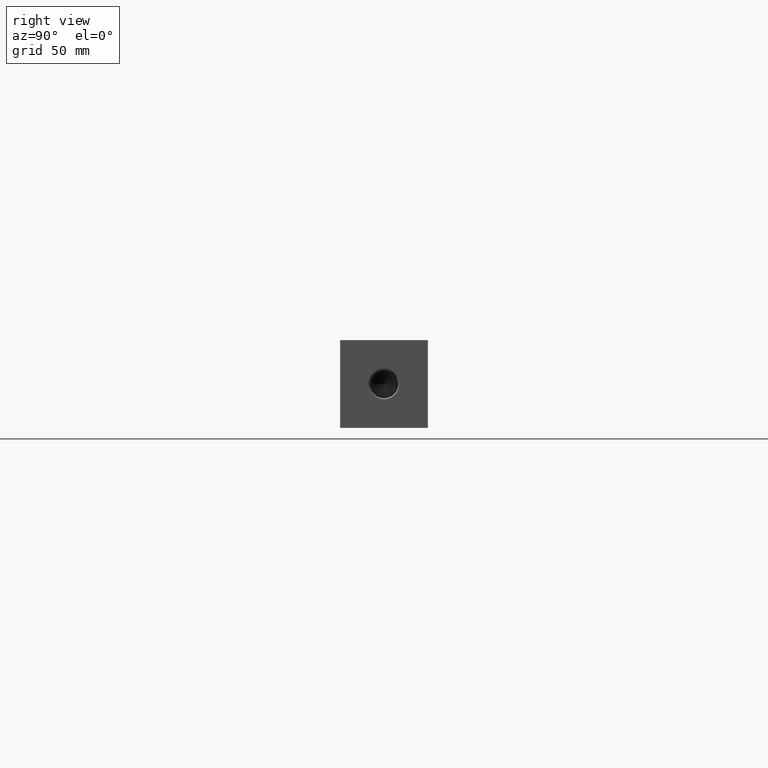
[diagram: clean part render]
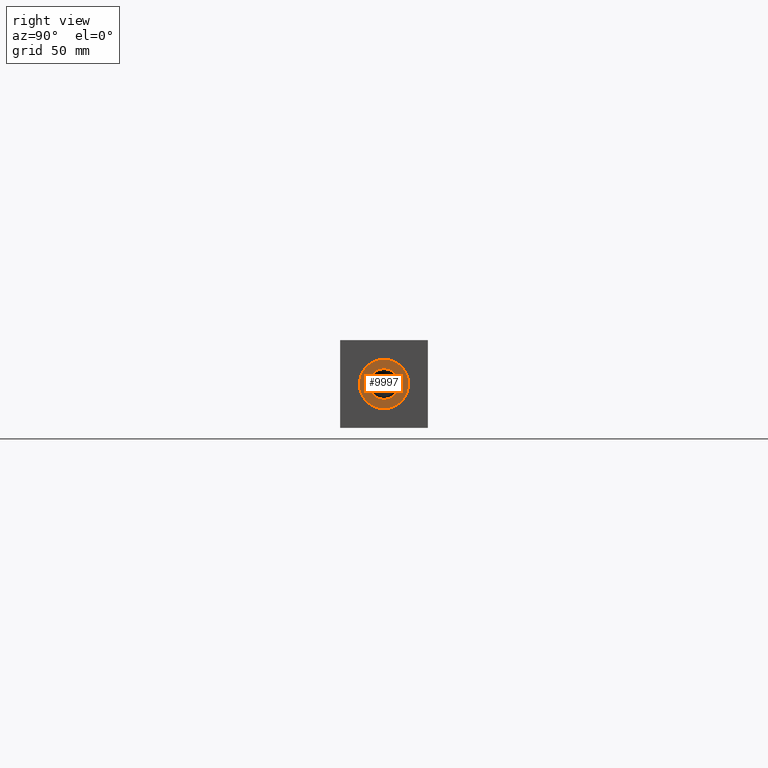
[diagram: same view with one face highlighted and labeled with its STEP entity id]
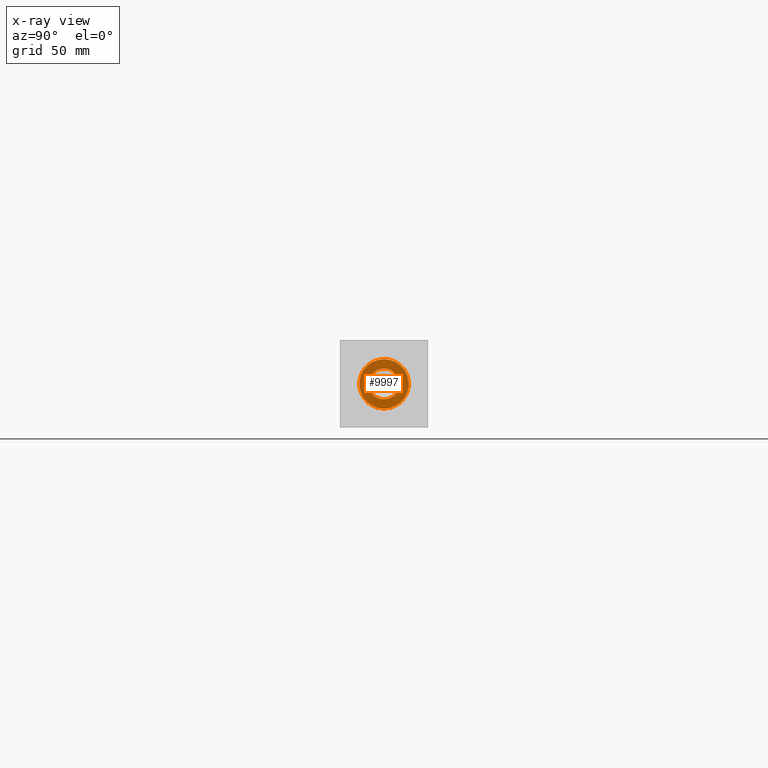
[diagram: x-ray of the same camera — body ghosted, the highlighted face saturated]
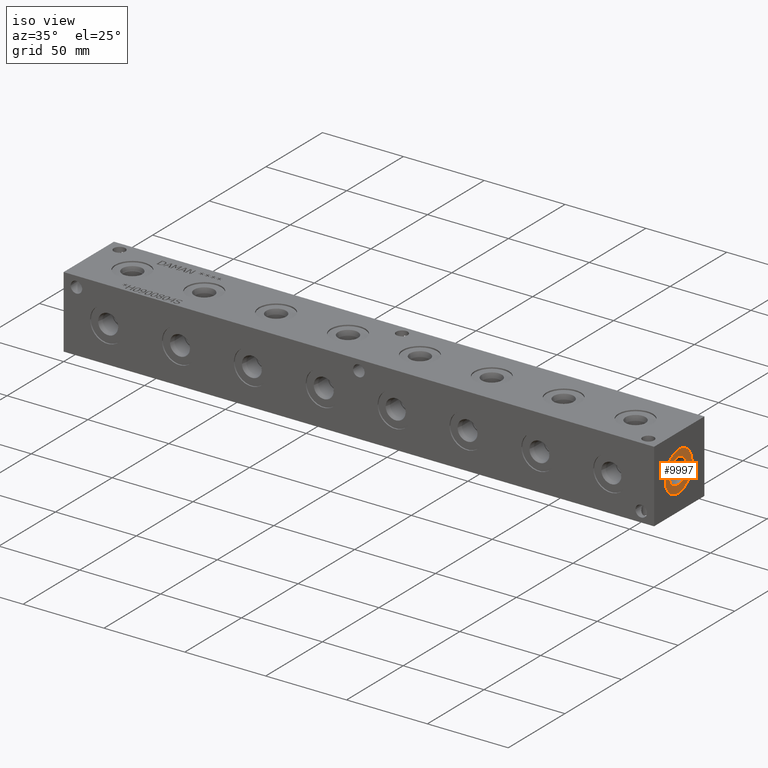
[diagram: same view with one face highlighted and labeled with its STEP entity id]
A machine part, right view. The second image highlights one B-rep face of the part: STEP entity #9997.
The next image is the same camera in x-ray: the body ghosted, the highlighted face saturated — about 0% of this face is hidden behind the body in this view.
A second angle (iso view) of the same face is appended — the face is thin or edge-on in the first view.
In plain terms, the highlighted planar face has unit normal (-1, 0, 0).
Its self-contained STEP definition (entity closure, byte-faithful):
#526=CIRCLE('',#10770,12.5095);
#527=CIRCLE('',#10771,12.5095);
#528=CIRCLE('',#10773,7.7978);
#529=CIRCLE('',#10774,7.7978);
#628=FACE_BOUND('',#2009,.T.);
#888=PLANE('',#10772);
#1405=FACE_OUTER_BOUND('',#2008,.T.);
#2008=EDGE_LOOP('',(#8941,#8942));
#2009=EDGE_LOOP('',(#8943,#8944));
#4820=VERTEX_POINT('',#17422);
#4821=VERTEX_POINT('',#17424);
#4822=VERTEX_POINT('',#17428);
#4823=VERTEX_POINT('',#17429);
#6212=EDGE_CURVE('',#4820,#4821,#526,.T.);
#6213=EDGE_CURVE('',#4821,#4820,#527,.T.);
#6214=EDGE_CURVE('',#4822,#4823,#528,.T.);
#6215=EDGE_CURVE('',#4823,#4822,#529,.T.);
#8941=ORIENTED_EDGE('',*,*,#6213,.F.);
#8942=ORIENTED_EDGE('',*,*,#6212,.F.);
#8943=ORIENTED_EDGE('',*,*,#6214,.T.);
#8944=ORIENTED_EDGE('',*,*,#6215,.T.);
#9997=ADVANCED_FACE('',(#1405,#628),#888,.F.);
#10770=AXIS2_PLACEMENT_3D('',#17425,#13096,#13097);
#10771=AXIS2_PLACEMENT_3D('',#17426,#13098,#13099);
#10772=AXIS2_PLACEMENT_3D('',#17427,#13100,#13101);
#10773=AXIS2_PLACEMENT_3D('',#17430,#13102,#13103);
#10774=AXIS2_PLACEMENT_3D('',#17431,#13104,#13105);
#13096=DIRECTION('center_axis',(-1.,0.,0.));
#13097=DIRECTION('ref_axis',(0.,0.,1.));
#13098=DIRECTION('center_axis',(-1.,0.,0.));
#13099=DIRECTION('ref_axis',(0.,0.,1.));
#13100=DIRECTION('center_axis',(-1.,0.,0.));
#13101=DIRECTION('ref_axis',(0.,0.,1.));
#13102=DIRECTION('center_axis',(-1.,0.,0.));
#13103=DIRECTION('ref_axis',(0.,0.,1.));
#13104=DIRECTION('center_axis',(-1.,0.,0.));
#13105=DIRECTION('ref_axis',(0.,0.,1.));
#17422=CARTESIAN_POINT('',(364.3376,22.225,34.7345));
#17424=CARTESIAN_POINT('',(364.3376,22.225,9.7155));
#17425=CARTESIAN_POINT('Origin',(364.3376,22.225,22.225));
#17426=CARTESIAN_POINT('Origin',(364.3376,22.225,22.225));
#17427=CARTESIAN_POINT('Origin',(364.3376,22.225,14.4272));
#17428=CARTESIAN_POINT('',(364.3376,22.225,14.4272));
#17429=CARTESIAN_POINT('',(364.3376,22.225,30.0228));
#17430=CARTESIAN_POINT('Origin',(364.3376,22.225,22.225));
#17431=CARTESIAN_POINT('Origin',(364.3376,22.225,22.225));